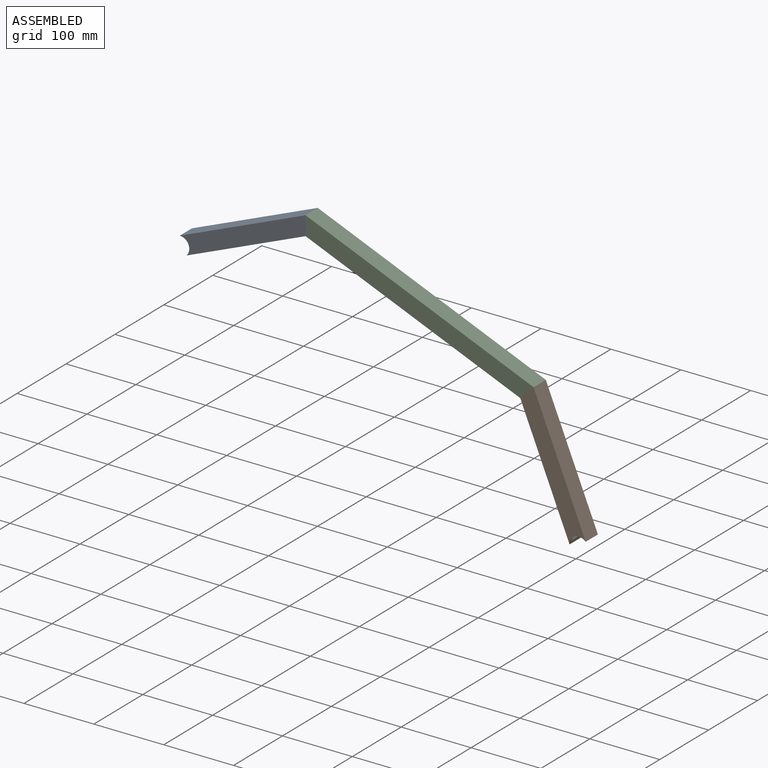
[diagram: assembled view]
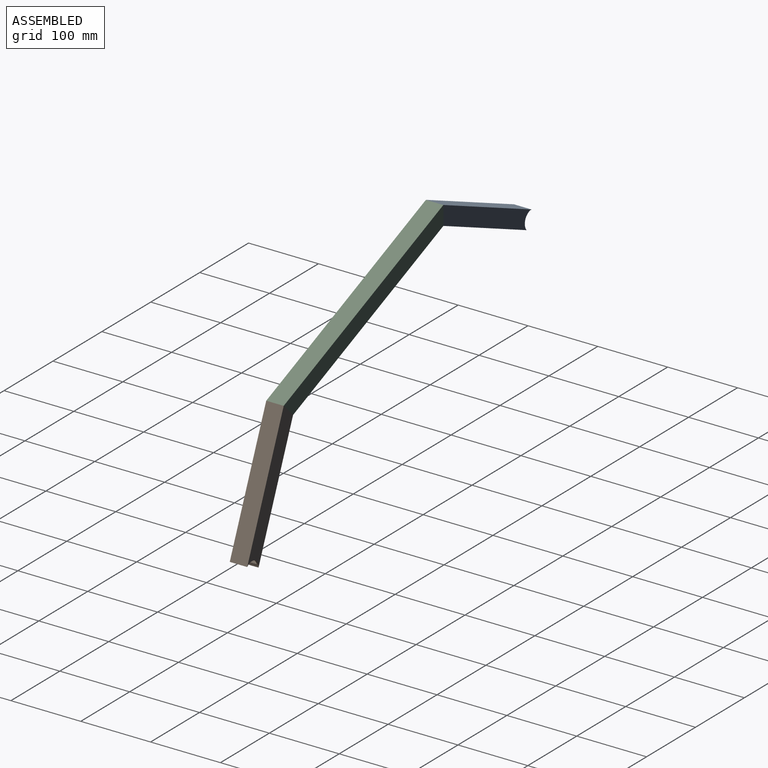
[diagram: assembled view, second angle]
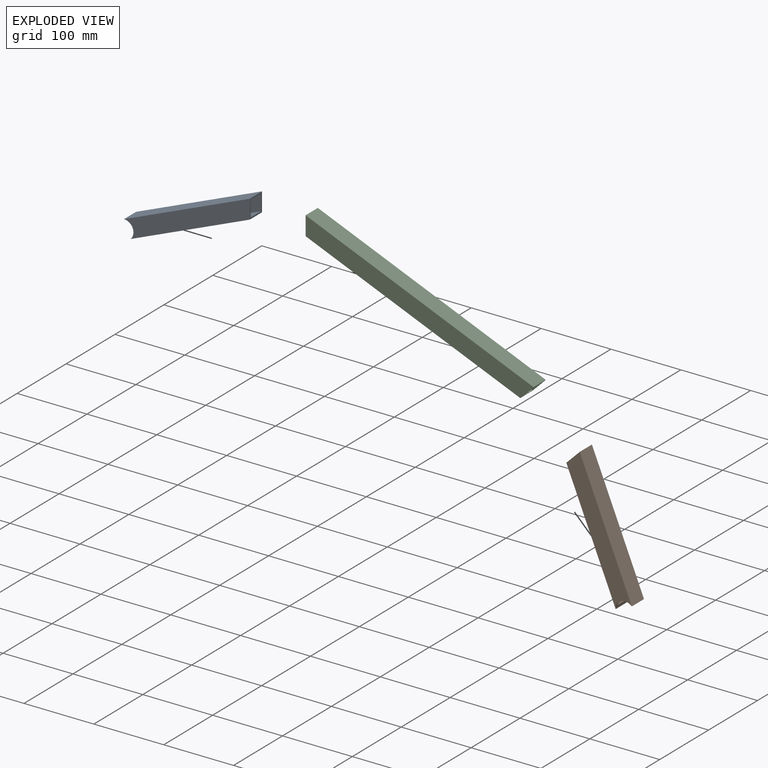
[diagram: exploded view]
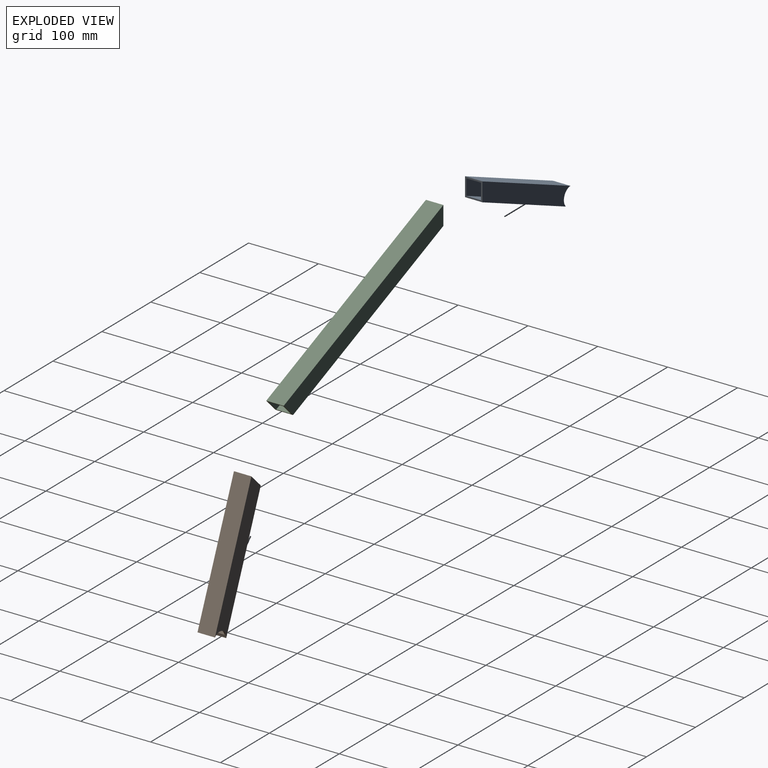
[diagram: exploded view, second angle]
ASSEMBLY  parts=3 mates=2
PART A: 10 faces, bbox 194.9x25x25 mm
  f0: plane 194.9x25mm, normal (0,-1,0), area 4591.1mm2, adj f2,f3,f8,f9
  f1: plane 194.9x25mm, normal (0,1,0), area 4591.1mm2, adj f2,f3,f8,f9
  f2: plane 184.55x25mm, normal (0,0,1), area 4613.6mm2, adj f0,f1,f8,f9
  f3: plane 194.9x25mm, normal (0,0,-1), area 4872.5mm2, adj f0,f1,f8,f9
  f4: plane 190.69x21mm, normal (0,0,1), area 4004.4mm2, adj f5,f7,f8,f9
  f5: plane 190.69x21mm, normal (0,1,0), area 3839.8mm2, adj f4,f6,f8,f9
  f6: plane 181.99x21mm, normal (0,0,-1), area 3821.7mm2, adj f5,f7,f8,f9
  f7: plane 190.69x21mm, normal (0,-1,0), area 3839.8mm2, adj f4,f6,f8,f9
  f8: plane 25x25mm, normal (0.92,0,0.38), area 199.2mm2, adj f0,f1,f2,f3,f4,f5,f6,f7
  f9: cylinder r=13.5mm len=25mm, axis (0,-1,0), area 293.6mm2, adj f0,f1,f2,f3,f4,f5,f6,f7
PART B: same geometry as A
PART C: 10 faces, bbox 353.3x25x25 mm
  f0: plane 353.35x25mm, normal (0,0,-1), area 8833.7mm2, adj f1,f7,f8,f9
  f1: plane 353.35x25mm, normal (0,1,0), area 8574.8mm2, adj f0,f2,f8,f9
  f2: plane 332.64x25mm, normal (0,0,1), area 8315.9mm2, adj f1,f7,f8,f9
  f3: plane 334.29x21mm, normal (0,0,-1), area 7020.2mm2, adj f4,f6,f8,f9
  f4: plane 351.69x21mm, normal (0,-1,0), area 7202.8mm2, adj f3,f5,f8,f9
  f5: plane 351.69x21mm, normal (0,0,1), area 7385.5mm2, adj f4,f6,f8,f9
  f6: plane 351.69x21mm, normal (0,1,0), area 7202.8mm2, adj f3,f5,f8,f9
  f7: plane 353.35x25mm, normal (0,-1,0), area 8574.8mm2, adj f0,f2,f8,f9
  f8: plane 25x25mm, normal (0.92,0,0.38), area 199.2mm2, adj f0,f1,f2,f3,f4,f5,f6,f7
  f9: plane 25x25mm, normal (-0.92,0,0.38), area 199.2mm2, adj f0,f1,f2,f3,f4,f5,f6,f7
PLACE A rot(axis=(0.98,0,0.2),180deg) t=(-193.32,7.24,438)mm
PLACE B rot(axis=(0,-1,0),112.5deg) t=(378.11,7.24,201.3)mm
PLACE C rot(axis=(0,-1,0),157.5deg) t=(308.34,7.24,379.31)mm
MATE fastened C.f8 <-> A.f8  axis (-1,0,0) through (-13.33,7.24,526.08)mm
MATE fastened C.f9 <-> B.f8  axis (0.71,0,-0.71) through (313.12,7.24,390.86)mm
